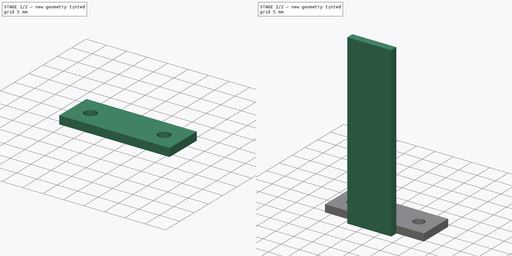
[diagram: build sequence overview — one tinted view per stage of 2, left to right]
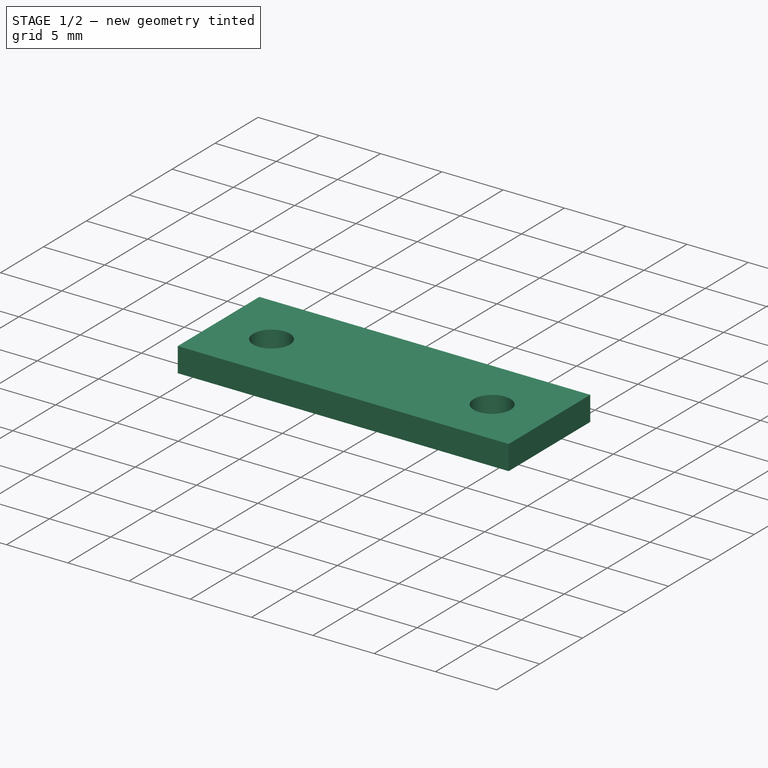
[diagram: stage 1 of 2 — iso view after this stage's code; geometry added in this stage tinted green]
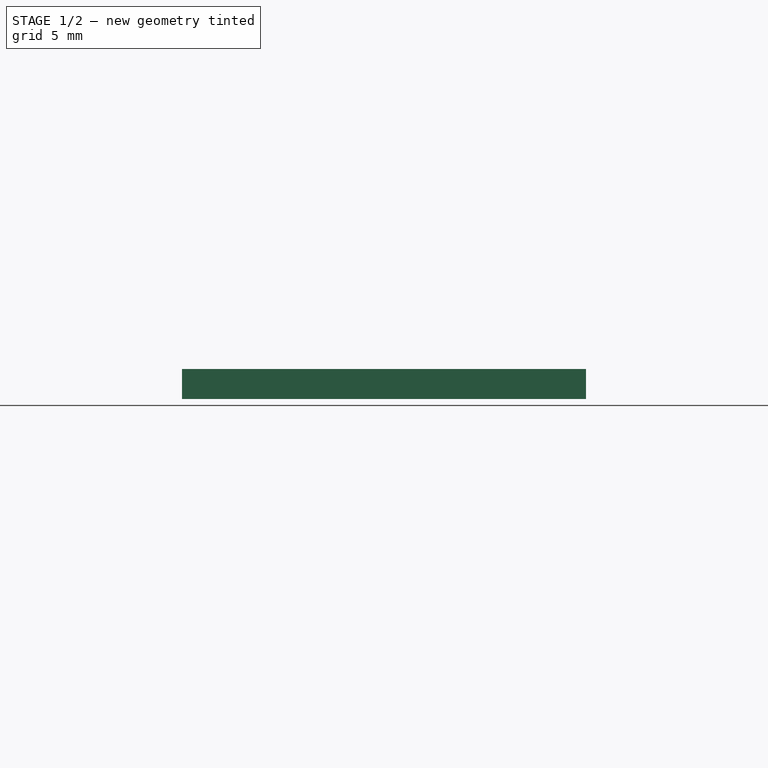
[diagram: stage 1 of 2 — front view after this stage's code; geometry added in this stage tinted green]
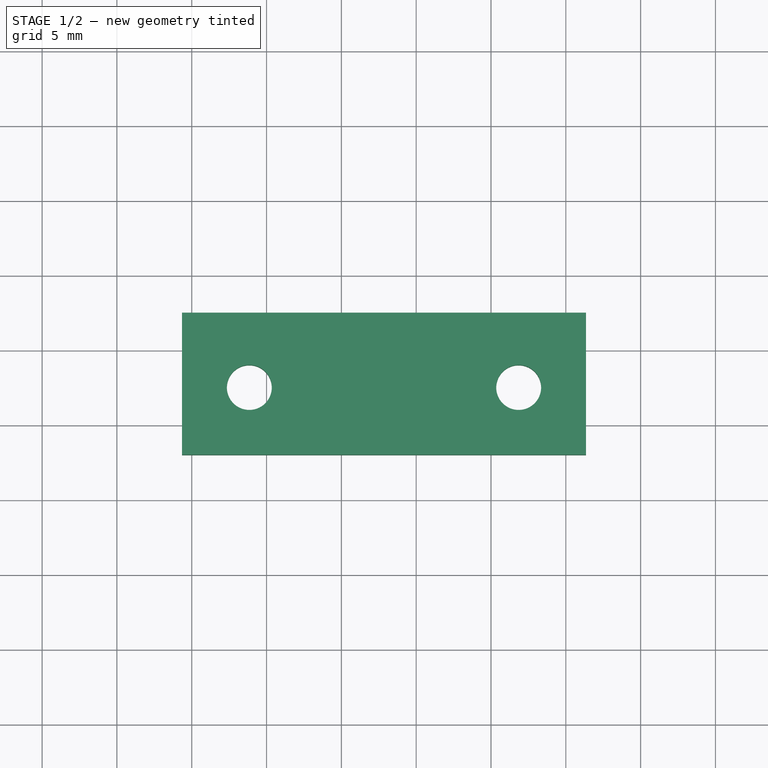
[diagram: stage 1 of 2 — top view after this stage's code; geometry added in this stage tinted green]
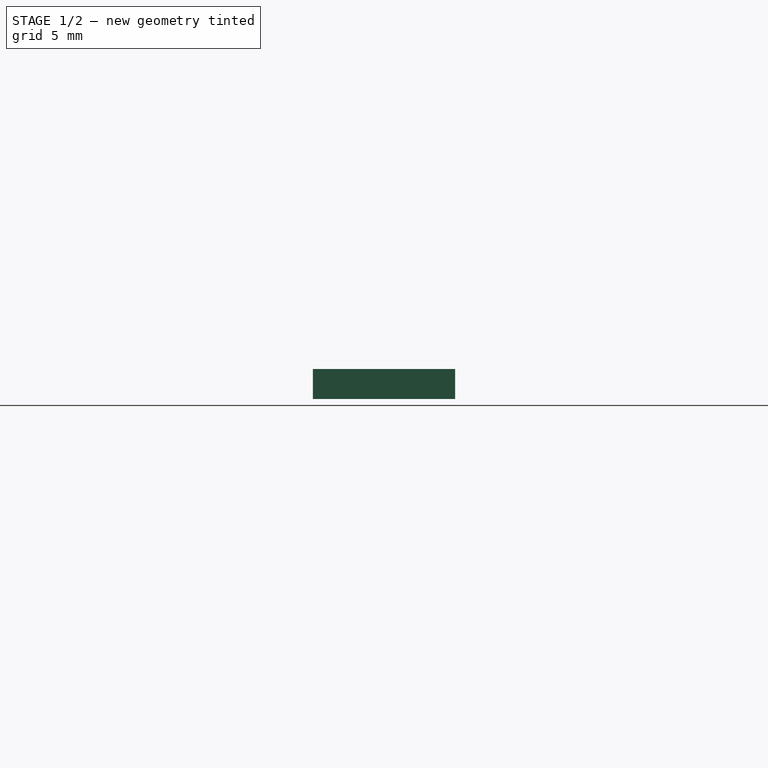
[diagram: stage 1 of 2 — right view after this stage's code; geometry added in this stage tinted green]
FCSTD DOCUMENT  (FreeCAD 0.16R)
Label: support_led_vertical
License: All rights reserved
LicenseURL: http://en.wikipedia.org/wiki/All_rights_reserved
objects: Sketcher::SketchObject×3, PartDesign::Pad×3, PartDesign::Mirrored×1
note: 10 computed .brp shape members not serialized (recipe doc carries the construction recipe); baked Part::Feature solids carry a one-line shape summary decoded from their .brp

FEATURE [Sketcher::SketchObject] Sketch
  sketch-geometry (6):
    g0: LineSegment StartX=9.35011 StartY=3.02413 StartZ=0 EndX=36.3501 EndY=3.02413 EndZ=0
    g1: LineSegment StartX=36.3501 StartY=3.02413 StartZ=0 EndX=36.3501 EndY=12.5241 EndZ=0
    g2: LineSegment StartX=36.3501 StartY=12.5241 StartZ=0 EndX=9.35011 EndY=12.5241 EndZ=0
    g3: LineSegment StartX=9.35011 StartY=12.5241 StartZ=0 EndX=9.35011 EndY=3.02413 EndZ=0
    g4: Circle CenterX=13.8501 CenterY=7.52413 CenterZ=0 NormalX=0 NormalY=0 NormalZ=1 Radius=1.5
    g5: Circle CenterX=31.8501 CenterY=7.52413 CenterZ=0 NormalX=0 NormalY=0 NormalZ=1 Radius=1.5
  constraints (16):
    c: Coincident(g0,g1)
    c: Coincident(g1,g2)
    c: Coincident(g2,g3)
    c: Coincident(g3,g0)
    c: Horizontal(g0)
    c: Horizontal(g2)
    c: Vertical(g1)
    c: Vertical(g3)
    c: DistanceX(g0,g0) = 27
    c: DistanceY(g3,g3) = 9.5
    c: Radius(g4) = 1.5
    c: Distance(g4,g0) = 4.5
    c: Distance(g4,g3) = 4.5
    c: Radius(g5) = 1.5
    c: Distance(g5,g0) = 4.5
    c: DistanceX(g4,g5) = 18
FEATURE [PartDesign::Pad] Pad
  Length = 2
  Length2 = 100
  Sketch = -> Sketch
  Type = 0
FEATURE [PartDesign::Mirrored] Mirrored
  MirrorPlane = -> Sketch [V_Axis]
  Originals = -> [Pad]
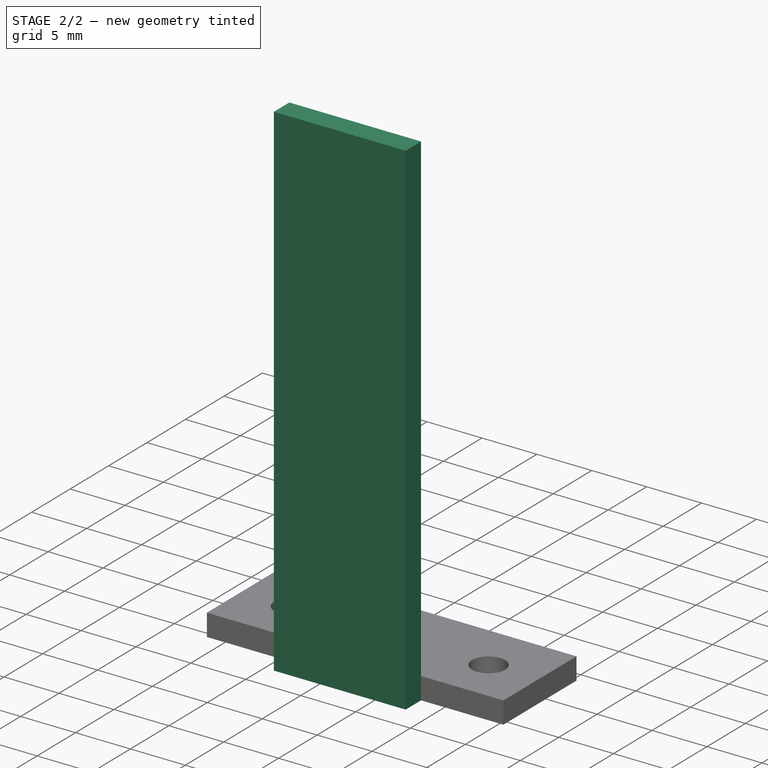
[diagram: stage 2 of 2 — iso view after this stage's code; geometry added in this stage tinted green]
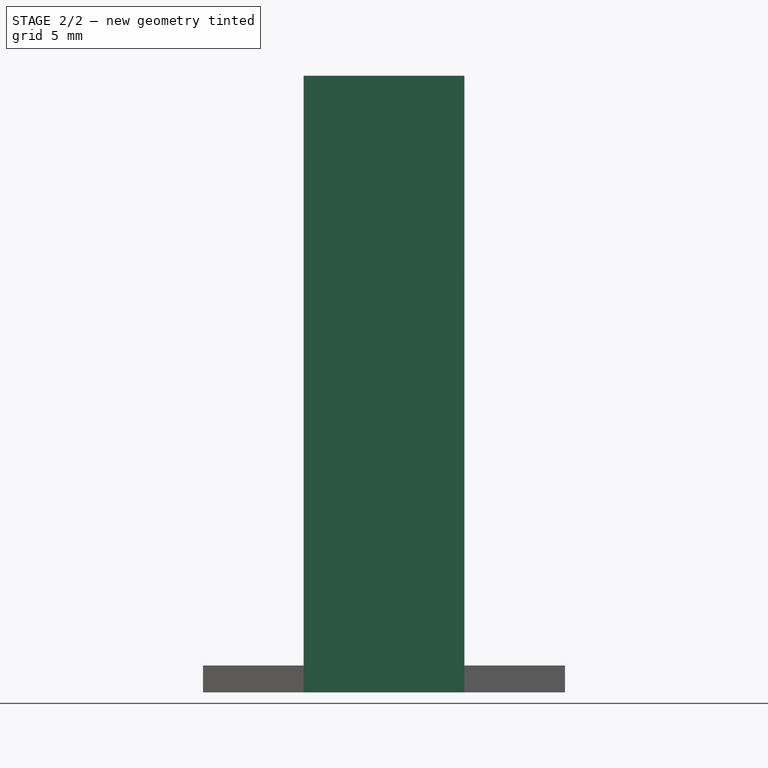
[diagram: stage 2 of 2 — front view after this stage's code; geometry added in this stage tinted green]
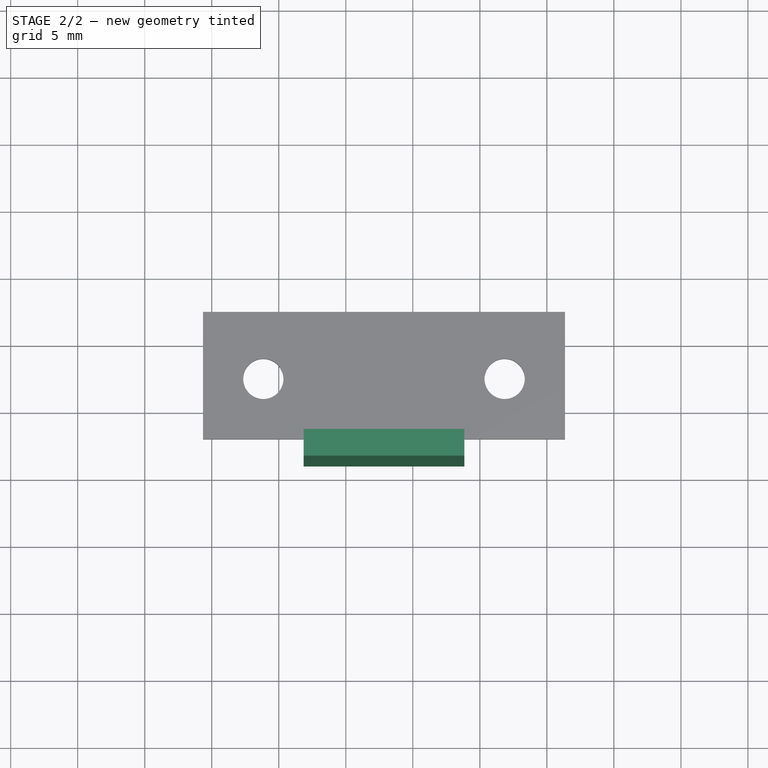
[diagram: stage 2 of 2 — top view after this stage's code; geometry added in this stage tinted green]
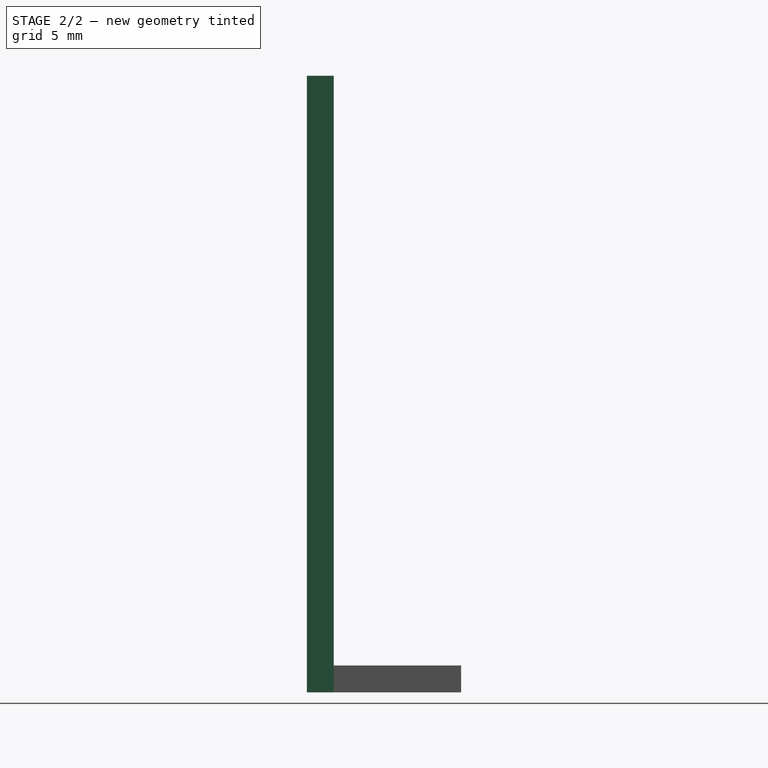
[diagram: stage 2 of 2 — right view after this stage's code; geometry added in this stage tinted green]
FEATURE [Sketcher::SketchObject] Sketch001
  ExternalGeometry = -> [Mirrored]
  Placement = pos=(0,3.02413,0) rot=(1,0,0;1.5708rad)
  Support = -> Mirrored [Face1]
  sketch-geometry (4):
    g0: LineSegment StartX=16.8501 StartY=0 StartZ=0 EndX=28.8501 EndY=0 EndZ=0
    g1: LineSegment StartX=28.8501 StartY=0 StartZ=0 EndX=28.8501 EndY=2 EndZ=0
    g2: LineSegment StartX=28.8501 StartY=2 StartZ=0 EndX=16.8501 EndY=2 EndZ=0
    g3: LineSegment StartX=16.8501 StartY=2 StartZ=0 EndX=16.8501 EndY=0 EndZ=0
  constraints (12):
    c: Coincident(g0,g1)
    c: Coincident(g1,g2)
    c: Coincident(g2,g3)
    c: Coincident(g3,g0)
    c: Horizontal(g0)
    c: Horizontal(g2)
    c: Vertical(g1)
    c: Vertical(g3)
    c: Distance(g0) = 12
    c: Distance(g3) = 2
    c: DistanceY(g0,g-3) = 0
    c: DistanceX(g-3,g0) = 7.5
FEATURE [PartDesign::Pad] Pad001
  Length = 2
  Length2 = 100
  Sketch = -> Sketch001
  Type = 0
FEATURE [Sketcher::SketchObject] Sketch002
  ExternalGeometry = -> [Pad001]
  Placement = pos=(0,0,2) rot=(0,0,1;0rad)
  Support = -> Pad001 [Face12]
  sketch-geometry (4):
    g0: LineSegment StartX=16.8501 StartY=1.02413 StartZ=0 EndX=28.8501 EndY=1.02413 EndZ=0
    g1: LineSegment StartX=28.8501 StartY=1.02413 StartZ=0 EndX=28.8501 EndY=3.02413 EndZ=0
    g2: LineSegment StartX=28.8501 StartY=3.02413 StartZ=0 EndX=16.8501 EndY=3.02413 EndZ=0
    g3: LineSegment StartX=16.8501 StartY=3.02413 StartZ=0 EndX=16.8501 EndY=1.02413 EndZ=0
  constraints (9):
    c: Coincident(g0,g1)
    c: Coincident(g1,g2)
    c: Coincident(g2,g3)
    c: Coincident(g3,g0)
    c: Horizontal(g0)
    c: Horizontal(g2)
    c: Vertical(g1)
    c: Vertical(g3)
    c: Coincident(g1,g-4)
FEATURE [PartDesign::Pad] Pad002
  Length = 44
  Length2 = 100
  Sketch = -> Sketch002
  Type = 0
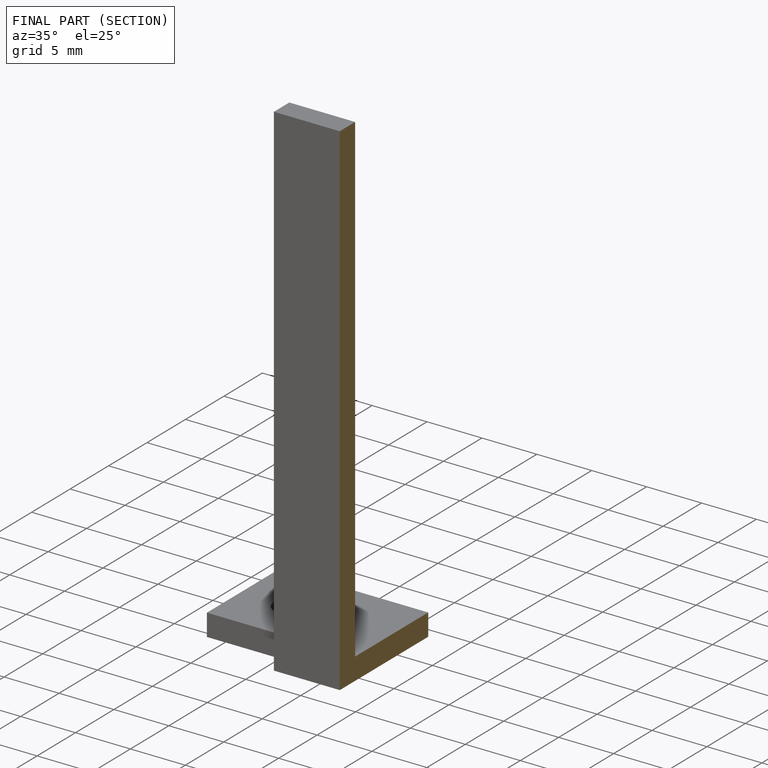
[diagram: finished part — half-section view (interior)]
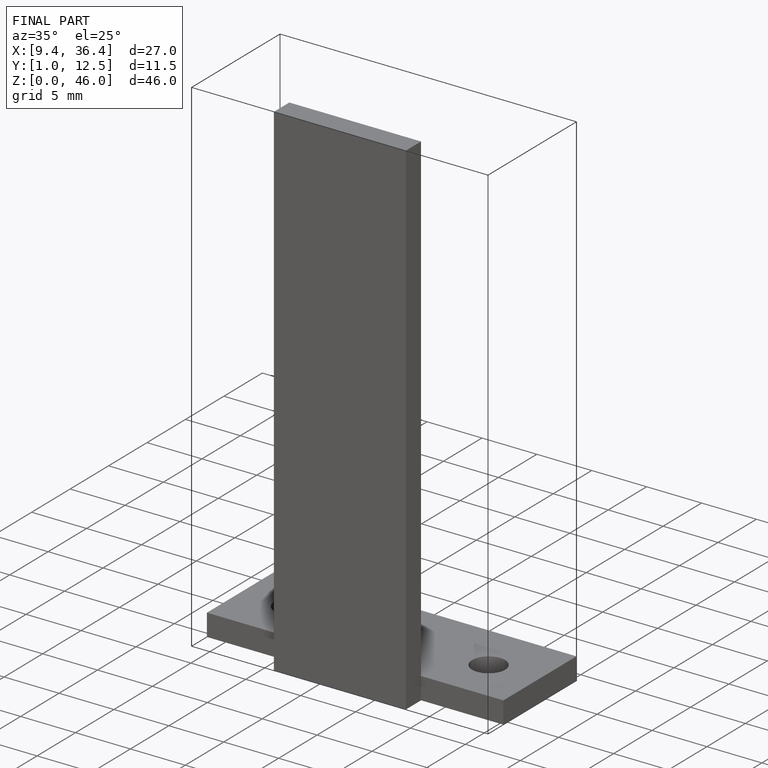
[diagram: finished part — iso view with bounding-box wireframe]
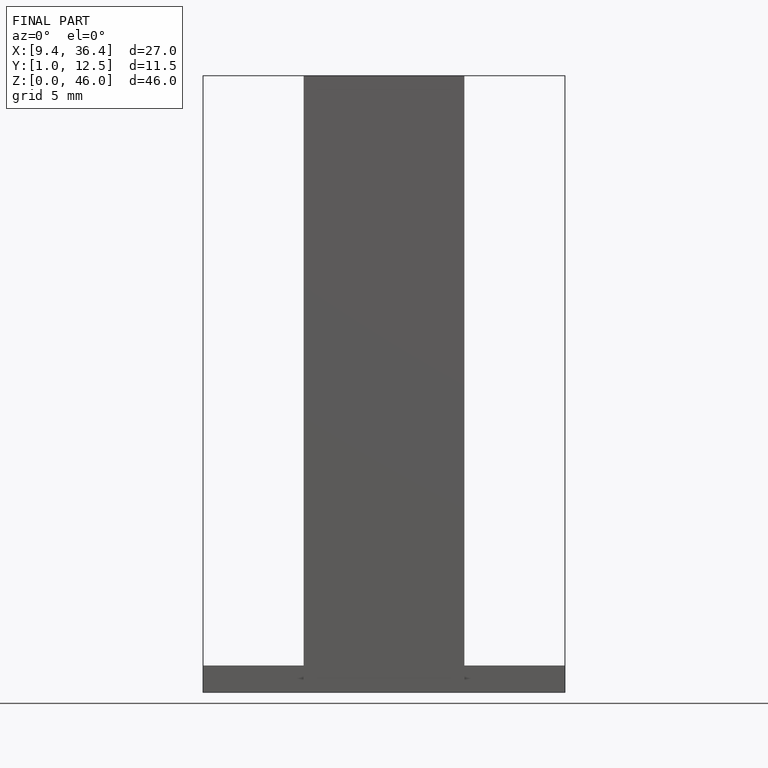
[diagram: finished part — front view with bounding-box wireframe]
